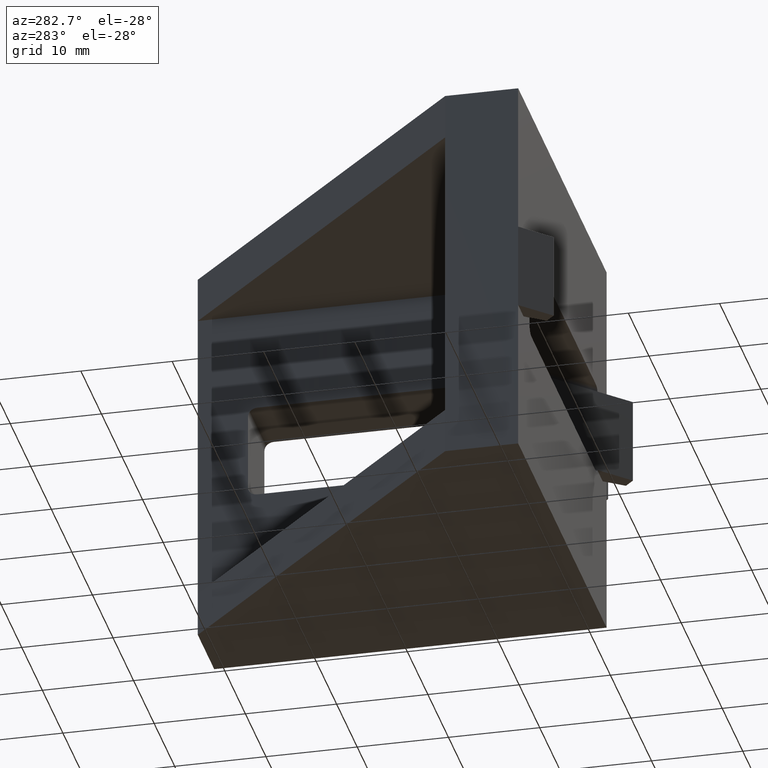
[diagram: clean part render]
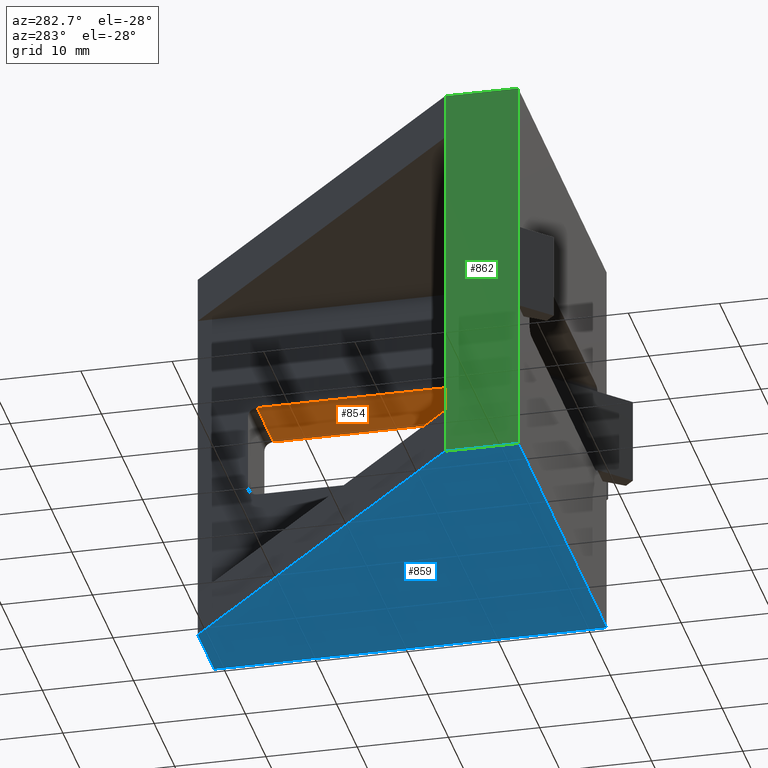
[diagram: same view with three faces highlighted in distinct colors, each labeled with its STEP entity id]
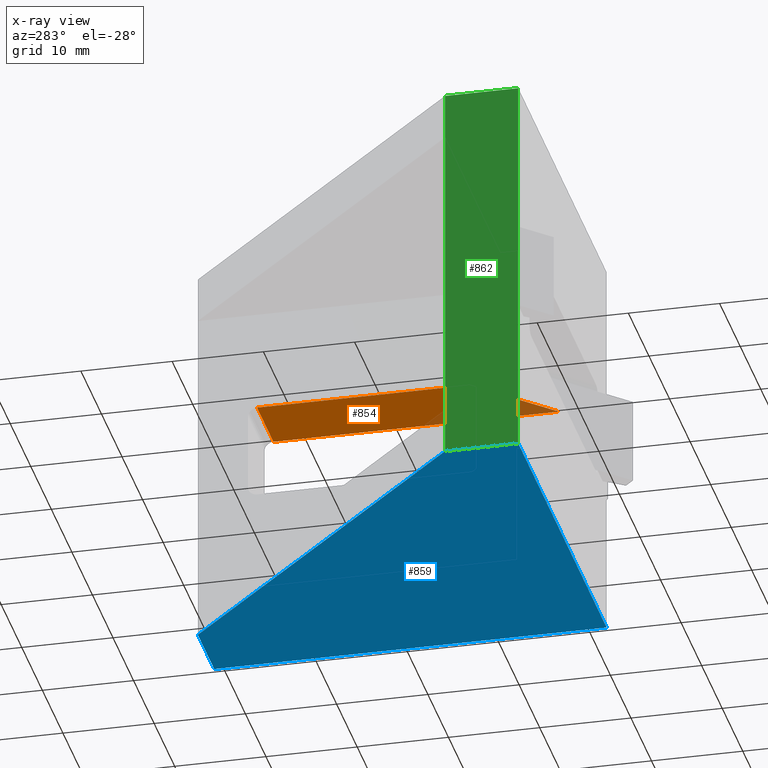
[diagram: x-ray of the same camera — body ghosted, the three highlighted faces saturated]
A machine part, auxiliary view with three faces highlighted in distinct colors.
The next image is the same camera in x-ray (body ghosted, the three faces saturated) — at least one of them is partly hidden behind the body in this view.
Their STEP definitions:

[orange] entity #854 — the highlighted planar face has unit normal (0, -0, 1).
#54=PLANE('',#916);
#98=FACE_OUTER_BOUND('',#147,.T.);
#147=EDGE_LOOP('',(#745,#746,#747,#748));
#167=LINE('',#1185,#271);
#234=LINE('',#1331,#338);
#245=LINE('',#1362,#349);
#246=LINE('',#1363,#350);
#271=VECTOR('',#953,11.3137084989848);
#338=VECTOR('',#1082,31.2928932188135);
#349=VECTOR('',#1113,23.2928932188134);
#350=VECTOR('',#1114,8.);
#383=VERTEX_POINT('',#1178);
#386=VERTEX_POINT('',#1183);
#434=VERTEX_POINT('',#1330);
#444=VERTEX_POINT('',#1361);
#463=EDGE_CURVE('',#386,#383,#167,.T.);
#536=EDGE_CURVE('',#383,#434,#234,.T.);
#551=EDGE_CURVE('',#444,#386,#245,.T.);
#552=EDGE_CURVE('',#444,#434,#246,.T.);
#745=ORIENTED_EDGE('',*,*,#463,.F.);
#746=ORIENTED_EDGE('',*,*,#551,.F.);
#747=ORIENTED_EDGE('',*,*,#552,.T.);
#748=ORIENTED_EDGE('',*,*,#536,.F.);
#854=ADVANCED_FACE('',(#98),#54,.F.);
#916=AXIS2_PLACEMENT_3D('',#1360,#1111,#1112);
#953=DIRECTION('',(0.707106781186547,-0.707106781186548,-1.81389563549803E-16));
#1082=DIRECTION('',(0.,1.,0.));
#1111=DIRECTION('center_axis',(1.1921792894518E-31,-2.56523580845067E-16,
1.));
#1112=DIRECTION('ref_axis',(3.5527136788005E-16,-1.,-2.66453525910038E-16));
#1113=DIRECTION('',(4.44089209850063E-16,-1.,0.));
#1114=DIRECTION('',(1.,4.64744521936112E-16,0.));
#1178=CARTESIAN_POINT('',(21.5,-16.2928932188135,5.25));
#1183=CARTESIAN_POINT('',(13.5,-8.29289321881345,5.25));
#1185=CARTESIAN_POINT('',(7.85355339059328,-2.64644660940671,5.25));
#1330=CARTESIAN_POINT('',(21.5,15.,5.25000000000001));
#1331=CARTESIAN_POINT('',(21.5,-16.6642135623731,5.25));
#1360=CARTESIAN_POINT('Origin',(13.5,15.,5.25000000000001));
#1361=CARTESIAN_POINT('',(13.5,15.,5.25000000000001));
#1362=CARTESIAN_POINT('',(13.5,4.83578643762691,5.25));
#1363=CARTESIAN_POINT('',(13.5,15.,5.25000000000001));

[blue] entity #859 — the highlighted planar face has unit normal (-0, 0, 1).
#57=PLANE('',#923);
#103=FACE_OUTER_BOUND('',#152,.T.);
#152=EDGE_LOOP('',(#764,#765,#766,#767,#768));
#224=LINE('',#1310,#328);
#232=LINE('',#1328,#336);
#252=LINE('',#1381,#356);
#253=LINE('',#1382,#357);
#254=LINE('',#1383,#358);
#328=VECTOR('',#1066,43.);
#336=VECTOR('',#1080,43.);
#356=VECTOR('',#1134,49.4974746830583);
#357=VECTOR('',#1135,8.);
#358=VECTOR('',#1136,8.);
#425=VERTEX_POINT('',#1307);
#426=VERTEX_POINT('',#1309);
#433=VERTEX_POINT('',#1327);
#448=VERTEX_POINT('',#1379);
#449=VERTEX_POINT('',#1380);
#524=EDGE_CURVE('',#426,#425,#224,.T.);
#534=EDGE_CURVE('',#433,#426,#232,.T.);
#560=EDGE_CURVE('',#448,#449,#252,.T.);
#561=EDGE_CURVE('',#448,#433,#253,.T.);
#562=EDGE_CURVE('',#425,#449,#254,.T.);
#764=ORIENTED_EDGE('',*,*,#560,.F.);
#765=ORIENTED_EDGE('',*,*,#561,.T.);
#766=ORIENTED_EDGE('',*,*,#534,.T.);
#767=ORIENTED_EDGE('',*,*,#524,.T.);
#768=ORIENTED_EDGE('',*,*,#562,.T.);
#859=ADVANCED_FACE('',(#103),#57,.F.);
#923=AXIS2_PLACEMENT_3D('',#1378,#1132,#1133);
#1066=DIRECTION('',(-1.,0.,0.));
#1080=DIRECTION('',(0.,-1.,0.));
#1132=DIRECTION('center_axis',(-1.69490379959191E-33,1.07372693240128E-31,
1.));
#1133=DIRECTION('ref_axis',(1.,0.,0.));
#1134=DIRECTION('',(-0.707106781186547,-0.707106781186548,0.));
#1135=DIRECTION('',(1.,5.55111512312578E-16,0.));
#1136=DIRECTION('',(-5.55111512312578E-16,1.,0.));
#1307=CARTESIAN_POINT('',(-21.5,-21.5,-21.5));
#1309=CARTESIAN_POINT('',(21.5,-21.5,-21.5));
#1310=CARTESIAN_POINT('',(21.5,-21.5,-21.5));
#1327=CARTESIAN_POINT('',(21.5,21.5,-21.5));
#1328=CARTESIAN_POINT('',(21.5,21.5,-21.5));
#1378=CARTESIAN_POINT('Origin',(10.8101635119081,-10.8101635119081,-21.5));
#1379=CARTESIAN_POINT('',(13.5,21.5,-21.5));
#1380=CARTESIAN_POINT('',(-21.5,-13.5,-21.5));
#1381=CARTESIAN_POINT('',(-43.,-35.0000000000001,-21.5));
#1382=CARTESIAN_POINT('',(13.5,21.5,-21.5));
#1383=CARTESIAN_POINT('',(-21.5,-21.5,-21.5));

[green] entity #862 — the highlighted planar face has unit normal (-1, -0, 0).
#60=PLANE('',#926);
#106=FACE_OUTER_BOUND('',#156,.T.);
#156=EDGE_LOOP('',(#785,#786,#787,#788,#789,#790,#791,#792));
#193=LINE('',#1246,#297);
#223=LINE('',#1308,#327);
#227=LINE('',#1315,#331);
#237=LINE('',#1342,#341);
#254=LINE('',#1383,#358);
#255=LINE('',#1385,#359);
#259=LINE('',#1393,#363);
#260=LINE('',#1394,#364);
#297=VECTOR('',#1005,9.5);
#327=VECTOR('',#1065,16.75);
#331=VECTOR('',#1069,16.75);
#341=VECTOR('',#1091,33.);
#358=VECTOR('',#1136,8.);
#359=VECTOR('',#1139,5.);
#363=VECTOR('',#1147,8.);
#364=VECTOR('',#1148,5.);
#402=VERTEX_POINT('',#1226);
#408=VERTEX_POINT('',#1244);
#425=VERTEX_POINT('',#1307);
#428=VERTEX_POINT('',#1313);
#438=VERTEX_POINT('',#1339);
#439=VERTEX_POINT('',#1341);
#449=VERTEX_POINT('',#1380);
#451=VERTEX_POINT('',#1392);
#493=EDGE_CURVE('',#408,#402,#193,.T.);
#523=EDGE_CURVE('',#402,#425,#223,.T.);
#527=EDGE_CURVE('',#428,#408,#227,.T.);
#541=EDGE_CURVE('',#439,#438,#237,.T.);
#562=EDGE_CURVE('',#425,#449,#254,.T.);
#563=EDGE_CURVE('',#438,#449,#255,.T.);
#567=EDGE_CURVE('',#451,#428,#259,.T.);
#568=EDGE_CURVE('',#451,#439,#260,.T.);
#785=ORIENTED_EDGE('',*,*,#563,.T.);
#786=ORIENTED_EDGE('',*,*,#562,.F.);
#787=ORIENTED_EDGE('',*,*,#523,.F.);
#788=ORIENTED_EDGE('',*,*,#493,.F.);
#789=ORIENTED_EDGE('',*,*,#527,.F.);
#790=ORIENTED_EDGE('',*,*,#567,.F.);
#791=ORIENTED_EDGE('',*,*,#568,.T.);
#792=ORIENTED_EDGE('',*,*,#541,.T.);
#862=ADVANCED_FACE('',(#106),#60,.T.);
#926=AXIS2_PLACEMENT_3D('',#1391,#1145,#1146);
#1005=DIRECTION('',(0.,0.,-1.));
#1065=DIRECTION('',(0.,0.,-1.));
#1069=DIRECTION('',(0.,0.,-1.));
#1091=DIRECTION('',(0.,0.,-1.));
#1136=DIRECTION('',(-5.55111512312578E-16,1.,0.));
#1139=DIRECTION('',(0.,0.,-1.));
#1145=DIRECTION('center_axis',(-1.,-5.55111512312578E-16,0.));
#1146=DIRECTION('ref_axis',(7.105427357601E-16,-1.,0.));
#1147=DIRECTION('',(5.55111512312578E-16,-1.,0.));
#1148=DIRECTION('',(0.,0.,-1.));
#1226=CARTESIAN_POINT('',(-21.5,-21.5,-4.75));
#1244=CARTESIAN_POINT('',(-21.5,-21.5,4.75));
#1246=CARTESIAN_POINT('',(-21.5,-21.5,0.));
#1307=CARTESIAN_POINT('',(-21.5,-21.5,-21.5));
#1308=CARTESIAN_POINT('',(-21.5,-21.5,0.));
#1313=CARTESIAN_POINT('',(-21.5,-21.5,21.5));
#1315=CARTESIAN_POINT('',(-21.5,-21.5,0.));
#1339=CARTESIAN_POINT('',(-21.5,-13.5,-16.5));
#1341=CARTESIAN_POINT('',(-21.5,-13.5,16.5));
#1342=CARTESIAN_POINT('',(-21.5,-13.5,0.));
#1380=CARTESIAN_POINT('',(-21.5,-13.5,-21.5));
#1383=CARTESIAN_POINT('',(-21.5,-21.5,-21.5));
#1385=CARTESIAN_POINT('',(-21.5,-13.5,0.));
#1391=CARTESIAN_POINT('Origin',(-21.5,-13.5,0.));
#1392=CARTESIAN_POINT('',(-21.5,-13.5,21.5));
#1393=CARTESIAN_POINT('',(-21.5,-21.5,21.5));
#1394=CARTESIAN_POINT('',(-21.5,-13.5,0.));